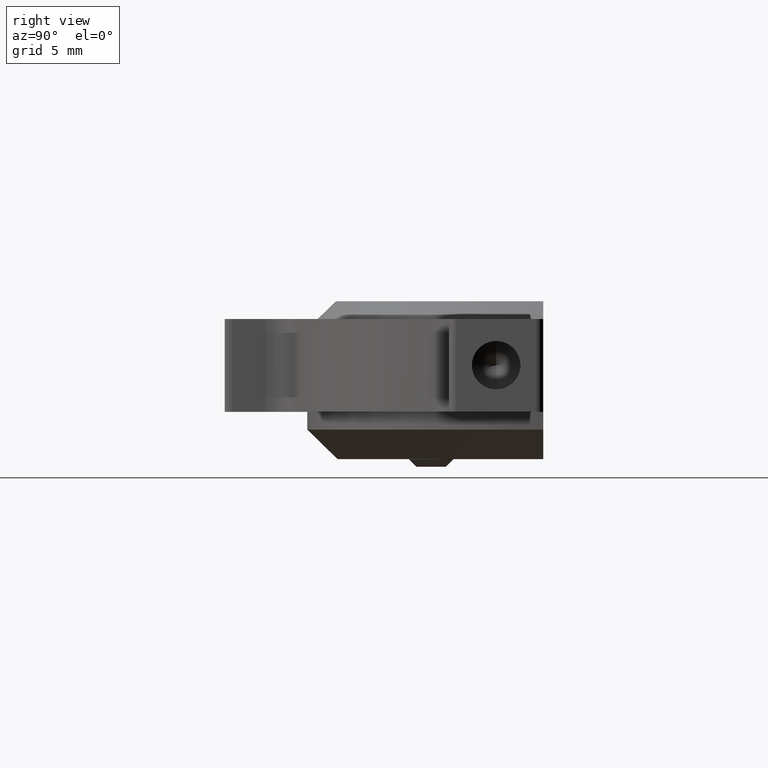
[diagram: clean part render]
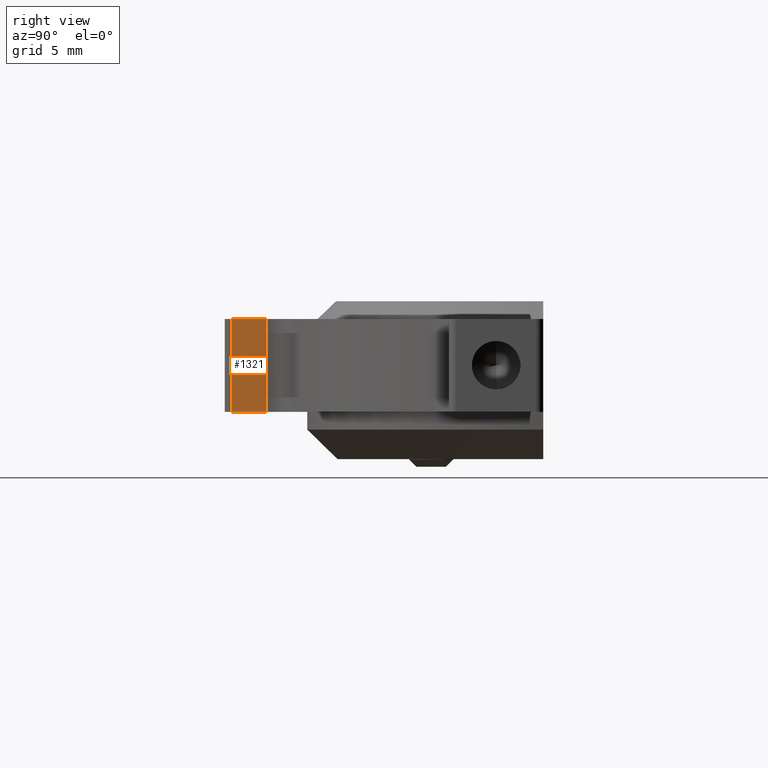
[diagram: same view with one face highlighted and labeled with its STEP entity id]
A machine part, right view. The second image highlights one B-rep face of the part: STEP entity #1321.
In plain terms, the highlighted planar face has unit normal (-1, -0, 0).
Its self-contained STEP definition (entity closure, byte-faithful):
#143 = CARTESIAN_POINT ( 'NONE',  ( 1.283520289026442773, -9.805060611194083009, 27.05000000000000426 ) ) ;
#160 = DIRECTION ( 'NONE',  ( -1.000000000000000000, -1.973492887659502222E-16, 0.000000000000000000 ) ) ;
#176 = EDGE_LOOP ( 'NONE', ( #1201, #2903, #636, #979 ) ) ;
#208 = LINE ( 'NONE', #2844, #1742 ) ;
#481 = LINE ( 'NONE', #1186, #2292 ) ;
#636 = ORIENTED_EDGE ( 'NONE', *, *, #1444, .T. ) ;
#642 = LINE ( 'NONE', #883, #2413 ) ;
#703 = EDGE_CURVE ( 'NONE', #2133, #947, #2859, .T. ) ;
#883 = CARTESIAN_POINT ( 'NONE',  ( 1.283520289026443217, -12.11117862795282996, 23.84900000000000375 ) ) ;
#947 = VERTEX_POINT ( 'NONE', #2002 ) ;
#979 = ORIENTED_EDGE ( 'NONE', *, *, #2479, .T. ) ;
#1115 = DIRECTION ( 'NONE',  ( 1.973492887659502222E-16, -1.000000000000000000, 0.000000000000000000 ) ) ;
#1182 = DIRECTION ( 'NONE',  ( 1.973492887659502222E-16, -1.000000000000000000, 0.000000000000000000 ) ) ;
#1186 = CARTESIAN_POINT ( 'NONE',  ( 1.283520289026442329, -8.216119778680431196, 33.35000000000000142 ) ) ;
#1201 = ORIENTED_EDGE ( 'NONE', *, *, #703, .F. ) ;
#1320 = PLANE ( 'NONE',  #1545 ) ;
#1321 = ADVANCED_FACE ( 'NONE', ( #2829 ), #1320, .F. ) ;
#1343 = EDGE_CURVE ( 'NONE', #2133, #1423, #208, .T. ) ;
#1423 = VERTEX_POINT ( 'NONE', #1688 ) ;
#1444 = EDGE_CURVE ( 'NONE', #1423, #1931, #481, .T. ) ;
#1545 = AXIS2_PLACEMENT_3D ( 'NONE', #2278, #160, #1115 ) ;
#1688 = CARTESIAN_POINT ( 'NONE',  ( 1.283520289026442773, -9.805060611194083009, 33.35000000000000142 ) ) ;
#1742 = VECTOR ( 'NONE', #1903, 1000.000000000000000 ) ;
#1903 = DIRECTION ( 'NONE',  ( -0.000000000000000000, -0.000000000000000000, 1.000000000000000000 ) ) ;
#1931 = VERTEX_POINT ( 'NONE', #2558 ) ;
#2002 = CARTESIAN_POINT ( 'NONE',  ( 1.283520289026443217, -12.11117862795282996, 27.05000000000000426 ) ) ;
#2133 = VERTEX_POINT ( 'NONE', #143 ) ;
#2248 = VECTOR ( 'NONE', #1182, 1000.000000000000000 ) ;
#2278 = CARTESIAN_POINT ( 'NONE',  ( 1.283520289026442329, -8.216119778680431196, 23.84900000000000375 ) ) ;
#2292 = VECTOR ( 'NONE', #2877, 1000.000000000000000 ) ;
#2413 = VECTOR ( 'NONE', #2809, 1000.000000000000000 ) ;
#2479 = EDGE_CURVE ( 'NONE', #1931, #947, #642, .T. ) ;
#2558 = CARTESIAN_POINT ( 'NONE',  ( 1.283520289026443217, -12.11117862795282996, 33.35000000000000142 ) ) ;
#2661 = CARTESIAN_POINT ( 'NONE',  ( 1.283520289026442329, -8.216119778680431196, 27.05000000000000426 ) ) ;
#2809 = DIRECTION ( 'NONE',  ( -0.000000000000000000, -0.000000000000000000, -1.000000000000000000 ) ) ;
#2829 = FACE_OUTER_BOUND ( 'NONE', #176, .T. ) ;
#2844 = CARTESIAN_POINT ( 'NONE',  ( 1.283520289026442773, -9.805060611194083009, 33.35000000000000142 ) ) ;
#2859 = LINE ( 'NONE', #2661, #2248 ) ;
#2877 = DIRECTION ( 'NONE',  ( 1.973492887659501975E-16, -1.000000000000000000, 0.000000000000000000 ) ) ;
#2903 = ORIENTED_EDGE ( 'NONE', *, *, #1343, .T. ) ;